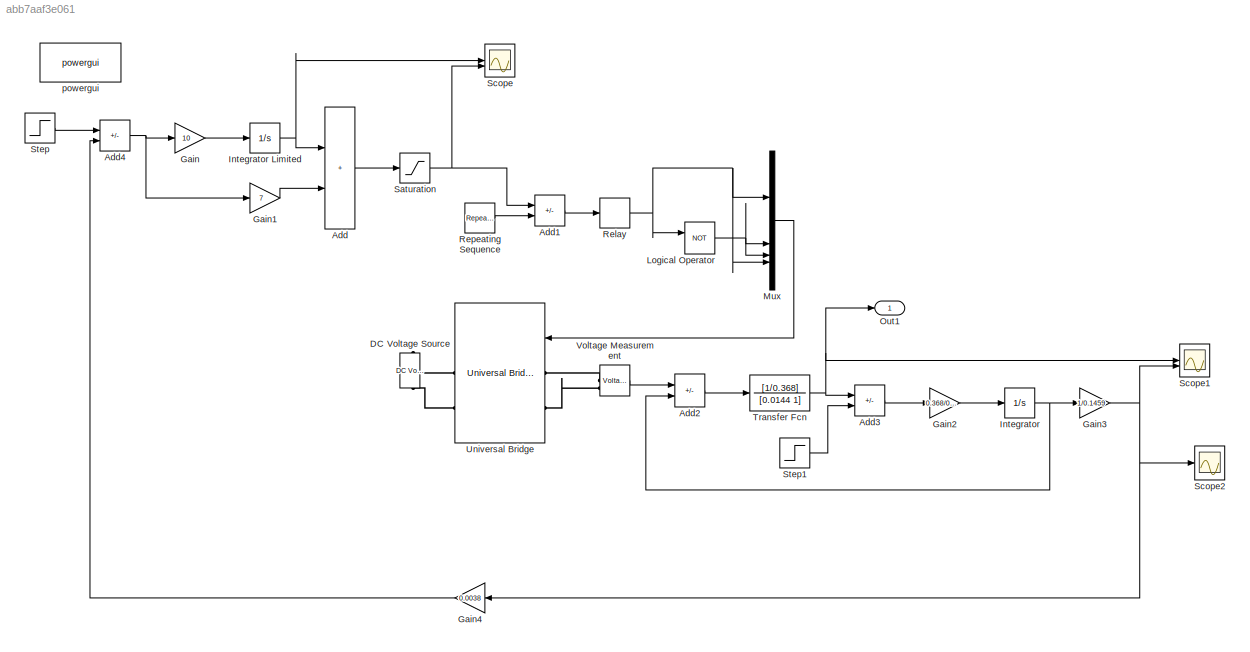
MODEL slx_abb7aaf3e061
KIND model
CONFIG AbsTol = auto
CONFIG EnableMultiTasking = off
CONFIG FixedStep = auto
CONFIG MaxStep = 1e-5
CONFIG MinStep = auto
CONFIG RelTol = 1e-3
CONFIG SampleTimeConstraint = Unconstrained
CONFIG SolverName = VariableStepAuto
CONFIG StartTime = 0.0
CONFIG StopTime = 8
BLOCK [Sum] Add
  IconShape = rectangular
BLOCK [Sum] Add1
  IconShape = rectangular
  Inputs = +-
BLOCK [Sum] Add2
  IconShape = rectangular
  Inputs = +-
BLOCK [Sum] Add3
  IconShape = rectangular
  Inputs = +-
BLOCK [Sum] Add4
  IconShape = rectangular
  Inputs = +-
BLOCK [Reference] DC Voltage Source  REF=spsDCVoltageSourceLib/DC Voltage Source
  LibrarySourceBlock = sps_lib/Sources/DC Voltage Source
  SourceBlock = spsDCVoltageSourceLib/DC Voltage Source
  SourceType = DC Voltage Source
BLOCK [Gain] Gain
  Gain = 10
BLOCK [Gain] Gain1
  Gain = 7
BLOCK [Gain] Gain2
  Gain = 0.368/0.18
BLOCK [Gain] Gain3
  Gain = 1/0.1459
BLOCK [Gain] Gain4
  Gain = 0.0038
BLOCK [Integrator] Integrator
BLOCK [Integrator] Integrator Limited
  LimitOutput = on
  LowerSaturationLimit = -5
  UpperSaturationLimit = 5
BLOCK [Logic] Logical Operator
  AllPortsSameDT = off
  Operator = NOT
  OutDataTypeStr = boolean
BLOCK [Mux] Mux
  DisplayOption = bar
BLOCK [Outport] Out1
BLOCK [Relay] Relay
  OffSwitchValue = 0
  OnSwitchValue = 0
  OutDataTypeStr = boolean
BLOCK [Reference] Repeating Sequence  REF=simulink/Sources/Repeating
Sequence
  SourceBlock = simulink/Sources/Repeating\nSequence
  SourceType = Repeating table
BLOCK [Saturate] Saturation
  LowerLimit = -5
  UpperLimit = 5
BLOCK [Scope] Scope
  Floating = off
  NumInputPorts = 2
  ScopeSpecificationString = Simulink.scopes.TimeScopeBlockCfg('CurrentConfiguration', extmgr.ConfigurationSet(extmgr.Configuration('Core','General UI',true),extmgr.Configuration('Core','Source UI',true),extmgr.Configuration('Sources','WiredSimulink',true),extmgr.Configuration('Visuals','Time Domain',true,'SerializedDisplays',{struct('MinYLimReal','-0.625','MaxYLimReal','5.625','YLabelReal','','MinYLimMag','0.00000','MaxYLimM...<+1394ch>
BLOCK [Scope] Scope1
  Floating = off
  NumInputPorts = 2
  ScopeSpecificationString = Simulink.scopes.TimeScopeBlockCfg('CurrentConfiguration', extmgr.ConfigurationSet(extmgr.Configuration('Core','General UI',true),extmgr.Configuration('Core','Source UI',true),extmgr.Configuration('Sources','WiredSimulink',true,'DataLoggingVariableName','ScopeData1'),extmgr.Configuration('Visuals','Time Domain',true,'SerializedDisplays',{struct('MinYLimReal','-490.83681','MaxYLimReal','3070.39935',...<+1397ch>
BLOCK [Scope] Scope2
  Floating = off
  NumInputPorts = 1
  ScopeSpecificationString = Simulink.scopes.TimeScopeBlockCfg('CurrentConfiguration', extmgr.ConfigurationSet(extmgr.Configuration('Core','General UI',true),extmgr.Configuration('Core','Source UI',true),extmgr.Configuration('Sources','WiredSimulink',true,'DataLoggingVariableName','ScopeData2'),extmgr.Configuration('Visuals','Time Domain',true,'SerializedDisplays',{struct('MinYLimReal','-339.28447','MaxYLimReal','3053.5602','...<+1378ch>
BLOCK [Step] Step
  After = 10
  SampleTime = 0
  Time = 0
BLOCK [Step] Step1
  After = 0
  OutDataTypeStr = single
  SampleTime = 0
  Time = 0
BLOCK [TransferFcn] Transfer Fcn
  Denominator = [0.0144 1]
  Numerator = [1/0.368]
BLOCK [Reference] Universal Bridge  REF=spsUniversalBridgeLib/Universal Bridge
  LibrarySourceBlock = sps_lib/Power Electronics/Universal Bridge
  SourceBlock = spsUniversalBridgeLib/Universal Bridge
  SourceType = Universal Bridge
BLOCK [Reference] Voltage Measurement  REF=spsVoltageMeasurementLib/Voltage Measurement
  LibrarySourceBlock = sps_lib/Sensors and Measurements/Voltage Measurement
  SourceBlock = spsVoltageMeasurementLib/Voltage Measurement
  SourceType = Voltage Measurement
  UserDataPersistent = on
BLOCK [Reference] powergui  REF=spspowerguiLib/powergui
  LibrarySourceBlock = sps_lib/powergui
  Priority = 1
  SourceBlock = spspowerguiLib/powergui
  SourceType = PSB option menu block
LINE Add1:1 -> Relay:1
LINE Add2:1 -> Transfer Fcn:1
LINE Add3:1 -> Gain2:1
NET Add4:1 -> Gain1:1, Gain:1
LINE Add:1 -> Saturation:1
LINE Gain1:1 -> Add:2
LINE Gain2:1 -> Integrator:1
NET Gain3:1 -> Gain4:1, Scope1:2, Scope2:1
LINE Gain4:1 -> Add4:2
LINE Gain:1 -> Integrator Limited:1
NET Integrator Limited:1 -> Add:1, Scope:1
NET Integrator:1 -> Add2:2, Gain3:1
NET Logical Operator:1 -> Mux:2, Mux:3
LINE Mux:1 -> Universal Bridge:1
NET Relay:1 -> Logical Operator:1, Mux:1, Mux:4
LINE Repeating Sequence:1 -> Add1:2
NET Saturation:1 -> Add1:1, Scope:2
LINE Step1:1 -> Add3:2
LINE Step:1 -> Add4:1
NET Transfer Fcn:1 -> Add3:1, Out1:1, Scope1:1
LINE Voltage Measurement:1 -> Add2:1
PLINE DC Voltage Source:LConn1 -- Universal Bridge:RConn2
PLINE DC Voltage Source:RConn1 -- Universal Bridge:RConn1
PLINE Universal Bridge:LConn1 -- Voltage Measurement:LConn1
PLINE Universal Bridge:LConn2 -- Voltage Measurement:LConn2
note: NET lines group one-source signal fan-out (src -> all destinations, sorted); 1:1 wires keep LINE
